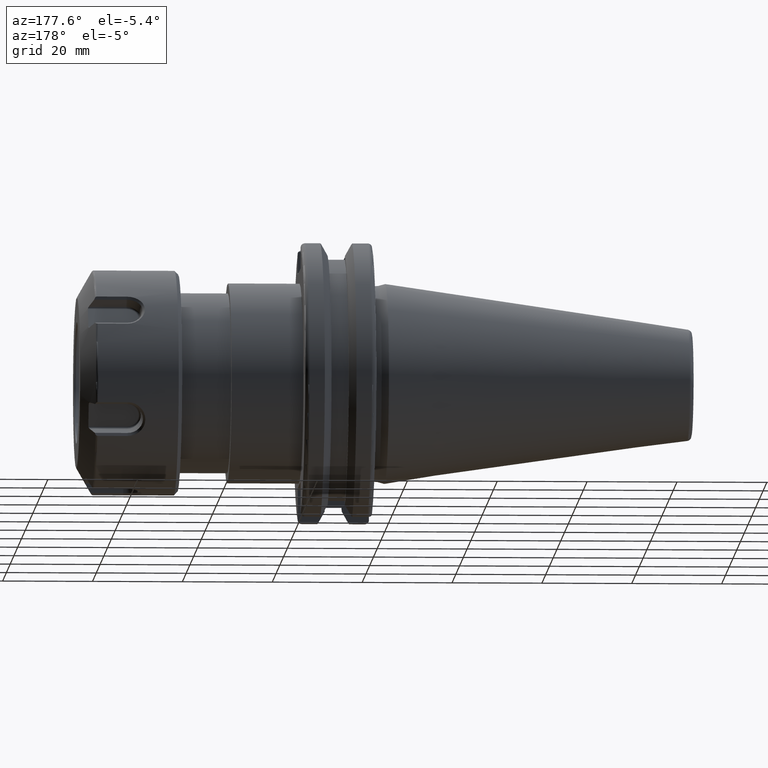
[diagram: clean part render]
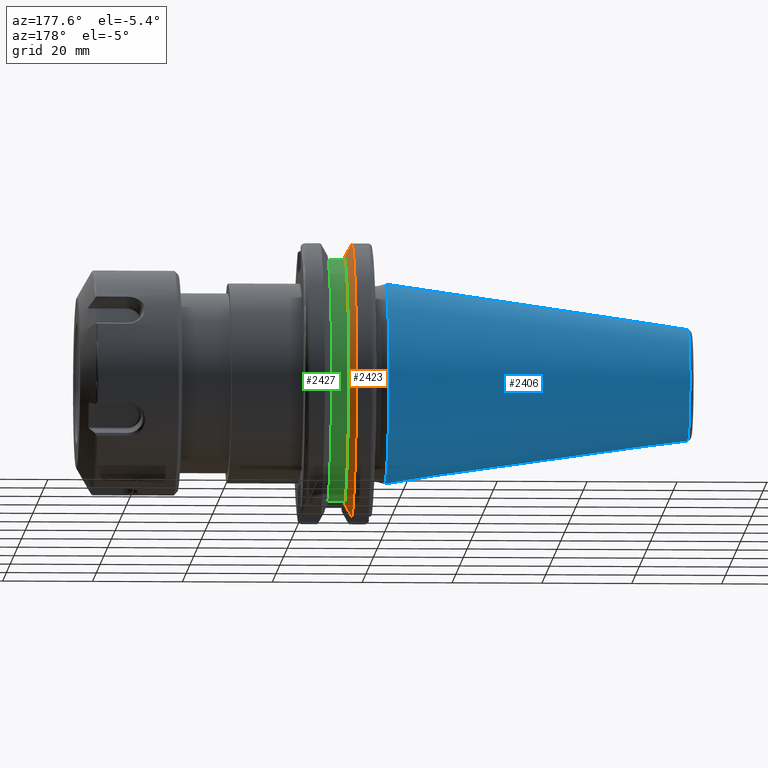
[diagram: same view with three faces highlighted in distinct colors, each labeled with its STEP entity id]
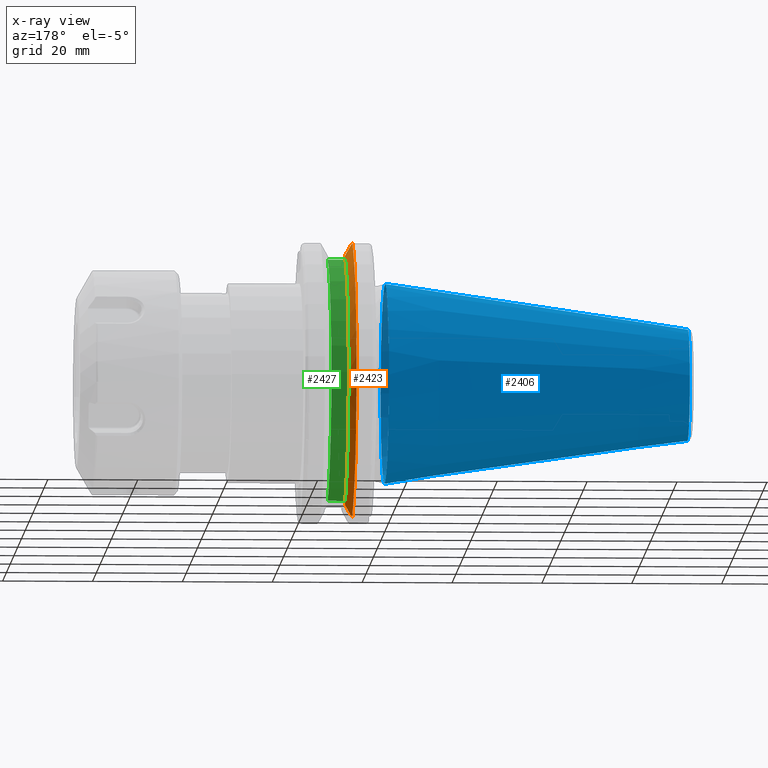
[diagram: x-ray of the same camera — body ghosted, the three highlighted faces saturated]
A machine part, auxiliary view with three faces highlighted in distinct colors.
The next image is the same camera in x-ray (body ghosted, the three faces saturated) — at least one of them is partly hidden behind the body in this view.
Their STEP definitions:

[orange] entity #2423 — the highlighted conical surface has half-angle 60 deg.
#118=(
BOUNDED_CURVE()
B_SPLINE_CURVE(2,(#3628,#3629,#3630),.UNSPECIFIED.,.F.,.F.)
B_SPLINE_CURVE_WITH_KNOTS((3,3),(0.,0.276549142796606),.UNSPECIFIED.)
CURVE()
GEOMETRIC_REPRESENTATION_ITEM()
RATIONAL_B_SPLINE_CURVE((1.,1.00095203903674,1.00031614444931))
REPRESENTATION_ITEM('')
);
#126=(
BOUNDED_CURVE()
B_SPLINE_CURVE(2,(#3810,#3811,#3812),.UNSPECIFIED.,.F.,.F.)
B_SPLINE_CURVE_WITH_KNOTS((3,3),(0.,0.0639048713675806),.UNSPECIFIED.)
CURVE()
GEOMETRIC_REPRESENTATION_ITEM()
RATIONAL_B_SPLINE_CURVE((1.,1.00028444218287,1.00047644010581))
REPRESENTATION_ITEM('')
);
#128=(
BOUNDED_CURVE()
B_SPLINE_CURVE(2,(#3852,#3853,#3854),.UNSPECIFIED.,.F.,.F.)
B_SPLINE_CURVE_WITH_KNOTS((3,3),(0.0550586467389817,0.331607789535851),
 .UNSPECIFIED.)
CURVE()
GEOMETRIC_REPRESENTATION_ITEM()
RATIONAL_B_SPLINE_CURVE((1.00031614445175,1.00095203904407,1.))
REPRESENTATION_ITEM('')
);
#132=(
BOUNDED_CURVE()
B_SPLINE_CURVE(2,(#3885,#3886,#3887),.UNSPECIFIED.,.F.,.F.)
B_SPLINE_CURVE_WITH_KNOTS((3,3),(0.329353533631191,0.393258405001025),
 .UNSPECIFIED.)
CURVE()
GEOMETRIC_REPRESENTATION_ITEM()
RATIONAL_B_SPLINE_CURVE((1.00047644010569,1.00028444218281,1.))
REPRESENTATION_ITEM('')
);
#390=FACE_OUTER_BOUND('',#539,.T.);
#539=EDGE_LOOP('',(#1880,#1881,#1882,#1883,#1884,#1885));
#986=CIRCLE('',#2667,31.75);
#991=CIRCLE('',#2680,28.9593772964944);
#1096=VERTEX_POINT('',#3625);
#1097=VERTEX_POINT('',#3627);
#1135=VERTEX_POINT('',#3808);
#1145=VERTEX_POINT('',#3849);
#1146=VERTEX_POINT('',#3851);
#1149=VERTEX_POINT('',#3867);
#1336=EDGE_CURVE('',#1097,#1096,#118,.T.);
#1387=EDGE_CURVE('',#1135,#1096,#126,.T.);
#1405=EDGE_CURVE('',#1146,#1145,#128,.T.);
#1412=EDGE_CURVE('',#1135,#1149,#986,.T.);
#1418=EDGE_CURVE('',#1146,#1149,#132,.T.);
#1423=EDGE_CURVE('',#1097,#1145,#991,.T.);
#1880=ORIENTED_EDGE('',*,*,#1387,.F.);
#1881=ORIENTED_EDGE('',*,*,#1412,.T.);
#1882=ORIENTED_EDGE('',*,*,#1418,.F.);
#1883=ORIENTED_EDGE('',*,*,#1405,.T.);
#1884=ORIENTED_EDGE('',*,*,#1423,.F.);
#1885=ORIENTED_EDGE('',*,*,#1336,.T.);
#2362=CONICAL_SURFACE('',#2679,30.3546886482472,1.0471975511966);
#2423=ADVANCED_FACE('',(#390),#2362,.T.);
#2667=AXIS2_PLACEMENT_3D('',#3869,#3051,#3052);
#2679=AXIS2_PLACEMENT_3D('',#3897,#3078,#3079);
#2680=AXIS2_PLACEMENT_3D('',#3898,#3080,#3081);
#3051=DIRECTION('center_axis',(1.,0.,0.));
#3052=DIRECTION('ref_axis',(0.,0.,-1.));
#3078=DIRECTION('center_axis',(-1.,0.,0.));
#3079=DIRECTION('ref_axis',(0.,1.,0.));
#3080=DIRECTION('center_axis',(1.,0.,0.));
#3081=DIRECTION('ref_axis',(0.,0.,-1.));
#3625=CARTESIAN_POINT('',(7.87958530351256,8.19,-30.1755016258903));
#3627=CARTESIAN_POINT('',(9.212,8.19,-27.7771386827498));
#3628=CARTESIAN_POINT('Ctrl Pts',(9.212,8.19,-27.7771386827498));
#3629=CARTESIAN_POINT('Ctrl Pts',(8.57336356152746,8.19,-28.9303689539641));
#3630=CARTESIAN_POINT('Ctrl Pts',(7.87958530351256,8.19,-30.1755016258903));
#3808=CARTESIAN_POINT('',(7.60083323092435,8.67204822802685,-30.5427254764662));
#3810=CARTESIAN_POINT('Ctrl Pts',(7.60083323092435,8.67204822802686,-30.5427254764662));
#3811=CARTESIAN_POINT('Ctrl Pts',(7.74189148121628,8.42917748262644,-30.357706789263));
#3812=CARTESIAN_POINT('Ctrl Pts',(7.87958530351256,8.19,-30.1755016258903));
#3849=CARTESIAN_POINT('',(9.212,8.19,27.7771386827498));
#3851=CARTESIAN_POINT('',(7.87958530351255,8.19,30.1755016258903));
#3852=CARTESIAN_POINT('Ctrl Pts',(7.87958530351255,8.19,30.1755016258903));
#3853=CARTESIAN_POINT('Ctrl Pts',(8.57336356152574,8.19,28.9303689539672));
#3854=CARTESIAN_POINT('Ctrl Pts',(9.212,8.19,27.7771386827498));
#3867=CARTESIAN_POINT('',(7.60083323092435,8.67204822802685,30.5427254764662));
#3869=CARTESIAN_POINT('Origin',(7.60083323092435,0.,0.));
#3885=CARTESIAN_POINT('Ctrl Pts',(7.87958530351255,8.19,30.1755016258903));
#3886=CARTESIAN_POINT('Ctrl Pts',(7.74189148121158,8.42917748263468,30.3577067892692));
#3887=CARTESIAN_POINT('Ctrl Pts',(7.60083323092435,8.67204822802687,30.5427254764662));
#3897=CARTESIAN_POINT('Origin',(8.40641661546218,0.,0.));
#3898=CARTESIAN_POINT('Origin',(9.212,0.,0.));

[blue] entity #2406 — the highlighted conical surface has half-angle 8.297 deg.
#373=FACE_OUTER_BOUND('',#522,.T.);
#522=EDGE_LOOP('',(#1802,#1803,#1804,#1805,#1806));
#695=LINE('',#3827,#849);
#849=VECTOR('',#3017,17.2484375);
#979=CIRCLE('',#2649,12.3966635780937);
#980=CIRCLE('',#2650,12.3966635780937);
#984=CIRCLE('',#2656,22.225);
#1136=VERTEX_POINT('',#3814);
#1137=VERTEX_POINT('',#3815);
#1140=VERTEX_POINT('',#3825);
#1388=EDGE_CURVE('',#1136,#1137,#979,.T.);
#1389=EDGE_CURVE('',#1137,#1136,#980,.T.);
#1393=EDGE_CURVE('',#1140,#1140,#984,.T.);
#1394=EDGE_CURVE('',#1140,#1137,#695,.T.);
#1802=ORIENTED_EDGE('',*,*,#1393,.F.);
#1803=ORIENTED_EDGE('',*,*,#1394,.T.);
#1804=ORIENTED_EDGE('',*,*,#1388,.F.);
#1805=ORIENTED_EDGE('',*,*,#1389,.F.);
#1806=ORIENTED_EDGE('',*,*,#1394,.F.);
#2359=CONICAL_SURFACE('',#2655,17.2484375,0.144812498238939);
#2406=ADVANCED_FACE('',(#373),#2359,.T.);
#2649=AXIS2_PLACEMENT_3D('',#3816,#3001,#3002);
#2650=AXIS2_PLACEMENT_3D('',#3817,#3003,#3004);
#2655=AXIS2_PLACEMENT_3D('',#3824,#3013,#3014);
#2656=AXIS2_PLACEMENT_3D('',#3826,#3015,#3016);
#3001=DIRECTION('center_axis',(-1.,0.,0.));
#3002=DIRECTION('ref_axis',(0.,-1.,3.06161699786838E-17));
#3003=DIRECTION('center_axis',(-1.,0.,0.));
#3004=DIRECTION('ref_axis',(0.,-1.,3.06161699786838E-17));
#3013=DIRECTION('center_axis',(1.,0.,0.));
#3014=DIRECTION('ref_axis',(0.,1.,0.));
#3015=DIRECTION('center_axis',(1.,0.,0.));
#3016=DIRECTION('ref_axis',(0.,0.,-1.));
#3017=DIRECTION('',(-0.989532981063282,0.144306893071729,1.76724974695192E-17));
#3814=CARTESIAN_POINT('',(-67.3943068930717,-1.5181534371019E-15,12.3966635780937));
#3815=CARTESIAN_POINT('',(-67.3943068930718,-12.3966635780937,-1.5181534371019E-15));
#3816=CARTESIAN_POINT('Origin',(-67.3943068930717,0.,-1.89769179637738E-15));
#3817=CARTESIAN_POINT('Origin',(-67.3943068930717,0.,-1.89769179637738E-15));
#3824=CARTESIAN_POINT('Origin',(-34.125,0.,0.));
#3825=CARTESIAN_POINT('',(0.,-22.225,-2.72177751110499E-15));
#3826=CARTESIAN_POINT('Origin',(0.,0.,0.));
#3827=CARTESIAN_POINT('',(-34.125,-17.2484375,-2.11232437746682E-15));

[green] entity #2427 — the highlighted cylindrical surface (partial cylindrical patch) has radius 28.15 mm, axis along (1, 0, 0).
#323=CYLINDRICAL_SURFACE('',#2687,28.15);
#394=FACE_OUTER_BOUND('',#543,.T.);
#543=EDGE_LOOP('',(#1900,#1901,#1902,#1903));
#669=LINE('',#3634,#823);
#703=LINE('',#3848,#857);
#823=VECTOR('',#2943,10.);
#857=VECTOR('',#3037,10.);
#993=CIRCLE('',#2684,28.15);
#995=CIRCLE('',#2688,28.15);
#1098=VERTEX_POINT('',#3631);
#1099=VERTEX_POINT('',#3633);
#1143=VERTEX_POINT('',#3845);
#1144=VERTEX_POINT('',#3847);
#1338=EDGE_CURVE('',#1099,#1098,#669,.T.);
#1403=EDGE_CURVE('',#1144,#1143,#703,.T.);
#1425=EDGE_CURVE('',#1098,#1144,#993,.T.);
#1427=EDGE_CURVE('',#1099,#1143,#995,.T.);
#1900=ORIENTED_EDGE('',*,*,#1338,.T.);
#1901=ORIENTED_EDGE('',*,*,#1425,.T.);
#1902=ORIENTED_EDGE('',*,*,#1403,.T.);
#1903=ORIENTED_EDGE('',*,*,#1427,.F.);
#2427=ADVANCED_FACE('',(#394),#323,.T.);
#2684=AXIS2_PLACEMENT_3D('',#3902,#3088,#3089);
#2687=AXIS2_PLACEMENT_3D('',#3905,#3094,#3095);
#2688=AXIS2_PLACEMENT_3D('',#3906,#3096,#3097);
#2943=DIRECTION('',(-1.,0.,0.));
#3037=DIRECTION('',(1.,0.,0.));
#3088=DIRECTION('center_axis',(1.,0.,0.));
#3089=DIRECTION('ref_axis',(0.,0.,-1.));
#3094=DIRECTION('center_axis',(1.,0.,0.));
#3095=DIRECTION('ref_axis',(0.,1.,0.));
#3096=DIRECTION('center_axis',(1.,0.,0.));
#3097=DIRECTION('ref_axis',(0.,0.,-1.));
#3631=CARTESIAN_POINT('',(9.212,8.19,-26.932255754021));
#3633=CARTESIAN_POINT('',(13.042,8.19,-26.932255754021));
#3634=CARTESIAN_POINT('',(11.127,8.19,-26.932255754021));
#3845=CARTESIAN_POINT('',(13.042,8.19,26.932255754021));
#3847=CARTESIAN_POINT('',(9.212,8.19,26.932255754021));
#3848=CARTESIAN_POINT('',(11.127,8.19,26.932255754021));
#3902=CARTESIAN_POINT('Origin',(9.212,0.,0.));
#3905=CARTESIAN_POINT('Origin',(11.127,0.,0.));
#3906=CARTESIAN_POINT('Origin',(13.042,0.,0.));